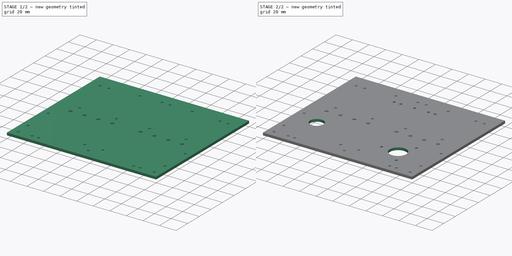
[diagram: build sequence overview — one tinted view per stage of 2, left to right]
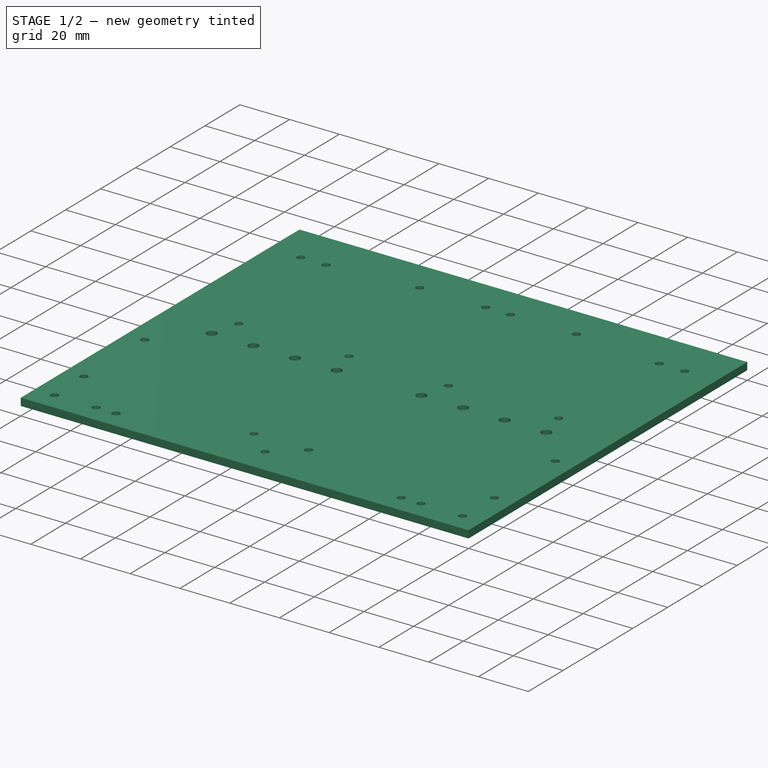
[diagram: stage 1 of 2 — iso view after this stage's code; geometry added in this stage tinted green]
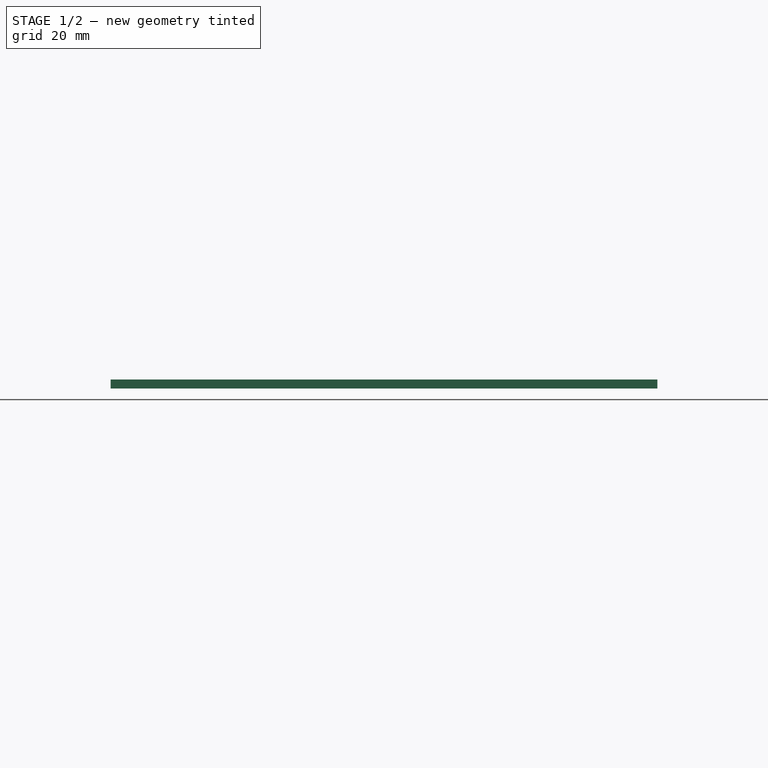
[diagram: stage 1 of 2 — front view after this stage's code; geometry added in this stage tinted green]
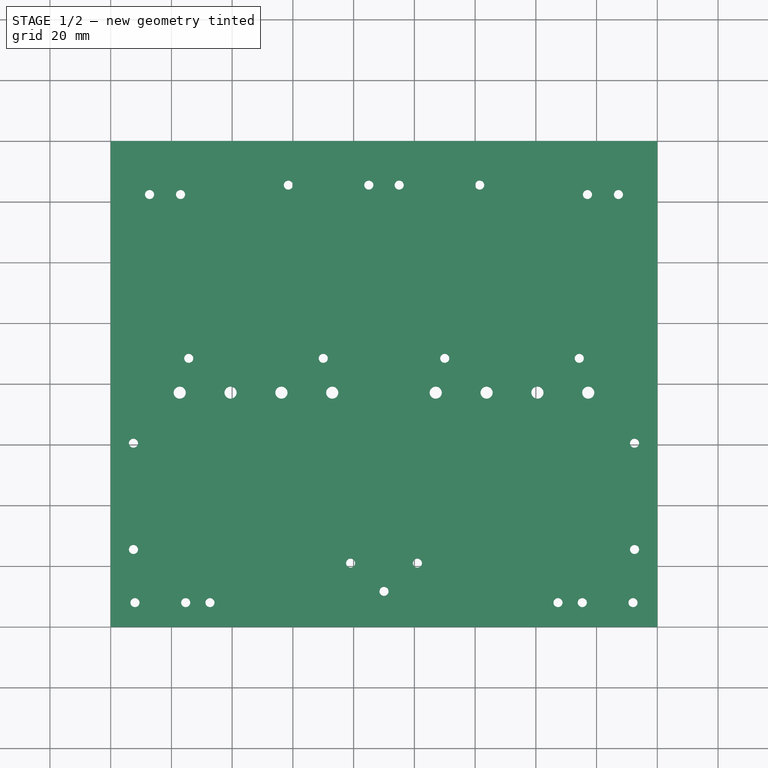
[diagram: stage 1 of 2 — top view after this stage's code; geometry added in this stage tinted green]
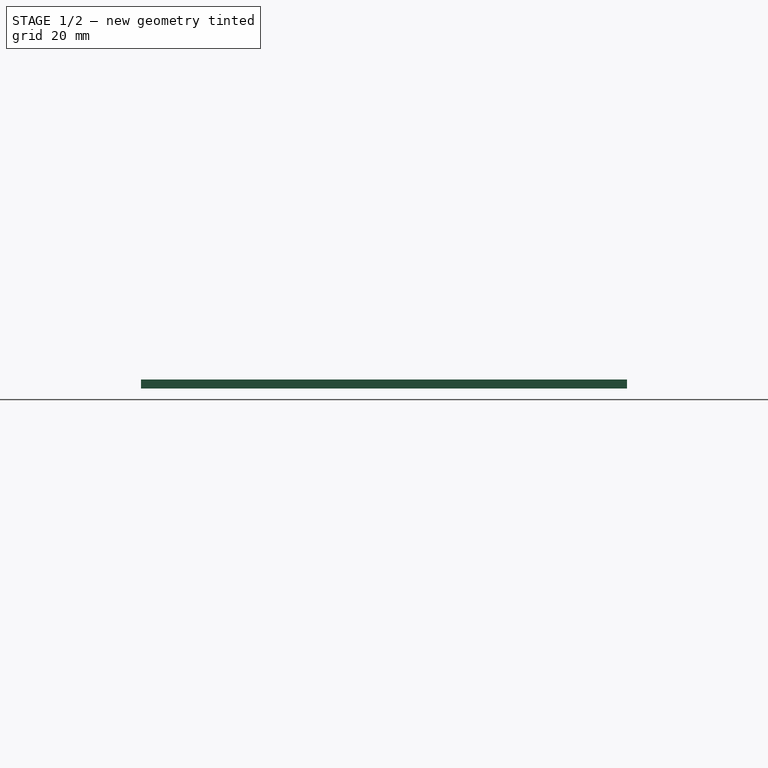
[diagram: stage 1 of 2 — right view after this stage's code; geometry added in this stage tinted green]
FCSTD DOCUMENT  (FreeCAD 0.16R6707 (Git))
Label: plafond
License: All rights reserved
LicenseURL: http://en.wikipedia.org/wiki/All_rights_reserved
objects: Sketcher::SketchObject×2, PartDesign::Pad×1, PartDesign::Mirrored×1, PartDesign::Pocket×1, Drawing::FeatureViewPart×1, Drawing::FeaturePage×1
note: 7 computed .brp shape members not serialized (recipe doc carries the construction recipe); baked Part::Feature solids carry a one-line shape summary decoded from their .brp

FEATURE [Sketcher::SketchObject] Sketch
  sketch-geometry (41):
    g0: LineSegment StartX=0 StartY=13.7 StartZ=0 EndX=0 EndY=160 EndZ=0
    g1: LineSegment StartX=0 StartY=160 StartZ=0 EndX=90 EndY=160 EndZ=0
    g2: LineSegment StartX=90 StartY=160 StartZ=0 EndX=90 EndY=17.4 EndZ=0
    g3: LineSegment [constr] StartX=90 StartY=17.4 StartZ=0 EndX=84.3 EndY=17.4 EndZ=0
    g4: LineSegment [constr] StartX=84.3 StartY=17.4 StartZ=0 EndX=84.3 EndY=6 EndZ=0
    g5: LineSegment [constr] StartX=84.3 StartY=6 StartZ=0 EndX=90 EndY=6 EndZ=0
    g6: LineSegment StartX=90 StartY=6 StartZ=0 EndX=90 EndY=0 EndZ=0
    g7: LineSegment StartX=90 StartY=0 StartZ=0 EndX=13.7 EndY=0 EndZ=0
    g8: LineSegment [constr] StartX=13.7 StartY=0 StartZ=0 EndX=13.7 EndY=13.7 EndZ=0
    g9: LineSegment [constr] StartX=13.7 StartY=13.7 StartZ=0 EndX=0 EndY=13.7 EndZ=0
    g10: LineSegment [constr] StartX=20 StartY=94.15 StartZ=0 EndX=31.4 EndY=94.15 EndZ=0
    g11: LineSegment [constr] StartX=31.4 StartY=94.15 StartZ=0 EndX=31.4 EndY=82.75 EndZ=0
    g12: LineSegment [constr] StartX=31.4 StartY=82.75 StartZ=0 EndX=20 EndY=82.75 EndZ=0
    g13: LineSegment [constr] StartX=20 StartY=82.75 StartZ=0 EndX=20 EndY=94.15 EndZ=0
    g14: LineSegment [constr] StartX=75.7 StartY=94.15 StartZ=0 EndX=64.3 EndY=94.15 EndZ=0
    g15: LineSegment [constr] StartX=64.3 StartY=94.15 StartZ=0 EndX=64.3 EndY=82.75 EndZ=0
    g16: LineSegment [constr] StartX=64.3 StartY=82.75 StartZ=0 EndX=75.7 EndY=82.75 EndZ=0
    g17: LineSegment [constr] StartX=75.7 StartY=82.75 StartZ=0 EndX=75.7 EndY=94.15 EndZ=0
    g18: Circle CenterX=24.7 CenterY=8 CenterZ=0 NormalX=0 NormalY=0 NormalZ=1 Radius=1.5
    g19: Circle CenterX=32.7 CenterY=8 CenterZ=0 NormalX=0 NormalY=0 NormalZ=1 Radius=1.5
    g20: Circle CenterX=79 CenterY=21 CenterZ=0 NormalX=0 NormalY=0 NormalZ=1 Radius=1.5
    g21: Circle CenterX=22.74 CenterY=77.15 CenterZ=0 NormalX=0 NormalY=0 NormalZ=1 Radius=2
    g22: Circle CenterX=39.48 CenterY=77.15 CenterZ=0 NormalX=0 NormalY=0 NormalZ=1 Radius=2
    g23: Circle CenterX=56.22 CenterY=77.15 CenterZ=0 NormalX=0 NormalY=0 NormalZ=1 Radius=2
    g24: Circle CenterX=72.96 CenterY=77.15 CenterZ=0 NormalX=0 NormalY=0 NormalZ=1 Radius=2
    g25: LineSegment StartX=0 StartY=13.7 StartZ=0 EndX=0 EndY=0 EndZ=0
    g26: LineSegment StartX=0 StartY=0 StartZ=0 EndX=13.7 EndY=0 EndZ=0
    g27: Circle CenterX=25.7 CenterY=88.45 CenterZ=0 NormalX=0 NormalY=0 NormalZ=1 Radius=1.5
    g28: Circle CenterX=70 CenterY=88.45 CenterZ=0 NormalX=0 NormalY=0 NormalZ=1 Radius=1.5
    g29: Circle CenterX=8 CenterY=8 CenterZ=0 NormalX=0 NormalY=0 NormalZ=1 Radius=1.5
    g30: LineSegment StartX=90 StartY=6 StartZ=0 EndX=90 EndY=10.2 EndZ=0
    g31: LineSegment StartX=90 StartY=17.4 StartZ=0 EndX=90 EndY=13.2 EndZ=0
    g32: ArcOfCircle CenterX=90 CenterY=11.7 CenterZ=0 NormalX=0 NormalY=0 NormalZ=1 Radius=1.5 StartAngle=1.5708 EndAngle=4.71239
    g33: GeomPoint [constr] X=7.5 Y=60.5 Z=0
    g34: Circle CenterX=7.5 CenterY=60.5 CenterZ=0 NormalX=0 NormalY=0 NormalZ=1 Radius=1.5
    g35: Circle CenterX=7.5 CenterY=25.5 CenterZ=0 NormalX=0 NormalY=0 NormalZ=1 Radius=1.5
    g36: Circle CenterX=85 CenterY=145.5 CenterZ=0 NormalX=0 NormalY=0 NormalZ=1 Radius=1.5
    g37: Circle CenterX=58.5 CenterY=145.5 CenterZ=0 NormalX=0 NormalY=0 NormalZ=1 Radius=1.5
    g38: Circle CenterX=12.8 CenterY=142.4 CenterZ=0 NormalX=0 NormalY=0 NormalZ=1 Radius=1.5
    g39: Circle CenterX=23 CenterY=142.4 CenterZ=0 NormalX=0 NormalY=0 NormalZ=1 Radius=1.5
    g40: GeomPoint [constr] X=8 Y=151 Z=0
  constraints (119):
    c: PointOnObject(g0,g-2)
    c: Vertical(g0)
    c: Coincident(g0,g1)
    c: Horizontal(g1)
    c: Coincident(g1,g2)
    c: Vertical(g2)
    c: Coincident(g2,g3)
    c: Horizontal(g3)
    c: Coincident(g3,g4)
    c: Vertical(g4)
    c: Coincident(g4,g5)
    c: Horizontal(g5)
    c: Coincident(g5,g6)
    c: PointOnObject(g6,g-1)
    c: Vertical(g6)
    c: Coincident(g6,g7)
    c: PointOnObject(g7,g-1)
    c: Coincident(g7,g8)
    c: Vertical(g8)
    c: Coincident(g8,g9)
    c: Coincident(g9,g0)
    c: Horizontal(g9)
    c: Distance(g9) = 13.7
    c: Distance(g8) = 13.7
    c: Distance(g1) = 90
    c: Distance(g3) = 5.7
    c: Distance(g4) = 11.4
    c: DistanceX(g2,g5) = 0
    c: Distance(g6) = 6
    c: DistanceY(g0) = 160
    c: Coincident(g10,g11)
    c: Coincident(g11,g12)
    c: Coincident(g12,g13)
    c: Coincident(g13,g10)
    c: Horizontal(g10)
    c: Horizontal(g12)
    c: Vertical(g11)
    c: Vertical(g13)
    c: Coincident(g14,g15)
    c: Coincident(g15,g16)
    c: Coincident(g16,g17)
    c: Coincident(g17,g14)
    c: Horizontal(g14)
    c: Horizontal(g16)
    c: Vertical(g15)
    c: Vertical(g17)
    c: DistanceY(g3,g15) = 65.35
    c: DistanceY(g16,g11) = 0
    c: DistanceX(g10) = 20
    c: Distance(g10) = 11.4
    c: Distance(g14) = 11.4
    c: Distance(g13) = 11.4
    c: Distance(g15) = 11.4
    c: Radius(g18) = 1.5
    c: Equal(g18,g19)
    c: Equal(g18,g20)
    c: Radius(g21) = 2
    c: Equal(g21,g22)
    c: Equal(g21,g23)
    c: Equal(g21,g24)
    c: DistanceX(g21) = 22.74
    c: DistanceX(g21,g22) = 16.74
    c: DistanceX(g22,g23) = 16.74
    c: DistanceX(g23,g24) = 16.74
    c: DistanceY(g22,g21) = 0
    c: DistanceY(g23,g22) = 0
    c: DistanceY(g24,g23) = 0
    c: DistanceY(g21,g10) = 17
    c: DistanceY(g18,g8) = 5.7
    c: DistanceX(g8,g18) = 11
    c: DistanceY(g4,g20) = 15
    c: DistanceX(g20,g3) = 5.3
    c: DistanceY(g18,g19) = 0
    c: DistanceX(g18,g19) = 8
    c: Coincident(g25,g0)
    c: Coincident(g25,g-1)
    c: DistanceX(g10,g14) = 32.9
    c: Coincident(g26,g-1)
    c: Coincident(g26,g7)
    c: Radius(g27) = 1.5
    c: Equal(g27,g28)
    c: DistanceY(g27,g28) = 0
    c: DistanceY(g27,g10) = 5.7
    c: DistanceX(g12,g27) = 5.7
    c: DistanceX(g15,g28) = 5.7
    c: Radius(g29) = 1.5
    c: DistanceY(g29,g8) = 5.7
    c: DistanceX(g29,g8) = 5.7
    c: Coincident(g30,g5)
    c: Vertical(g30)
    c: Coincident(g31,g2)
    c: Vertical(g31)
    c: Coincident(g32,g31)
    c: Coincident(g32,g30)
    c: DistanceX(g5,g32) = 0
    c: DistanceY(g5,g32) = 5.7
    c: Distance(g30) = 4.2
    c: DistanceY(g29,g33) = 52.5
    c: DistanceX(g33) = 7.5
    c: DistanceX(g35,g33) = 0
    c: DistanceX(g34,g33) = 0
    c: DistanceY(g34,g33) = 0
    c: Radius(g35) = 1.5
    c: Equal(g35,g34)
    c: DistanceY(g34,g35) = -35
    c: DistanceX(g37,g1) = 31.5
    c: DistanceX(g36,g1) = 5
    c: Radius(g37) = 1.5
    c: Equal(g37,g36)
    c: DistanceY(g37,g36) = 0
    c: DistanceY(g36,g1) = 14.5
    c: DistanceY(g38,g39) = 0
    c: DistanceX(g38,g39) = 10.2
    c: Radius(g38) = 1.5
    c: Equal(g38,g39)
    c: DistanceX(g40,g38) = 4.8
    c: DistanceY(g38,g40) = 8.6
    c: DistanceY(g40,g0) = 9
    c: DistanceX(g0,g40) = 8
FEATURE [PartDesign::Pad] Pad
  Length = 3
  Length2 = 100
  Sketch = -> Sketch
  Type = 0
FEATURE [PartDesign::Mirrored] Mirrored
  MirrorPlane = -> Pad [Face4]
  Originals = -> [Pad]
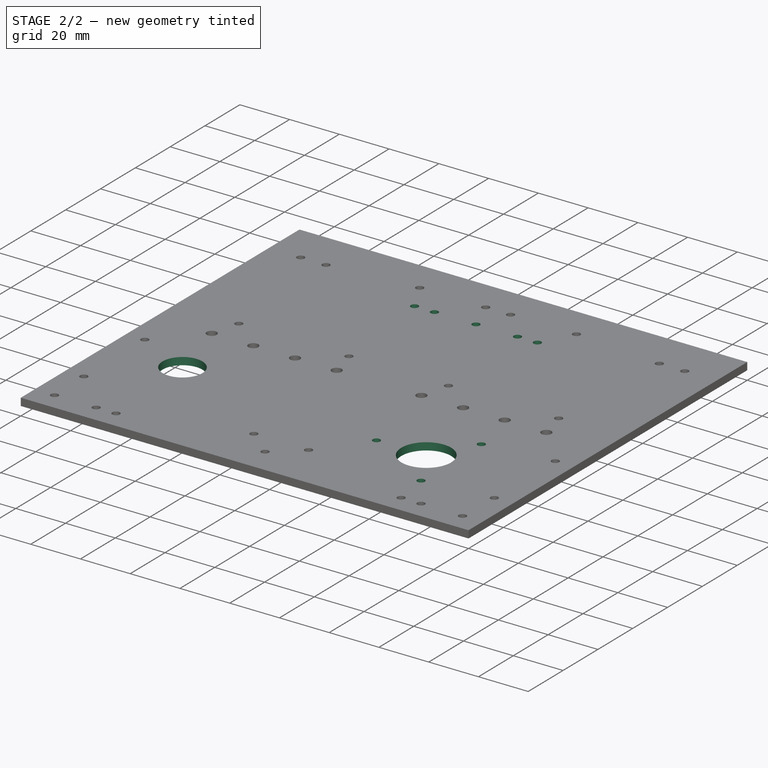
[diagram: stage 2 of 2 — iso view after this stage's code; geometry added in this stage tinted green]
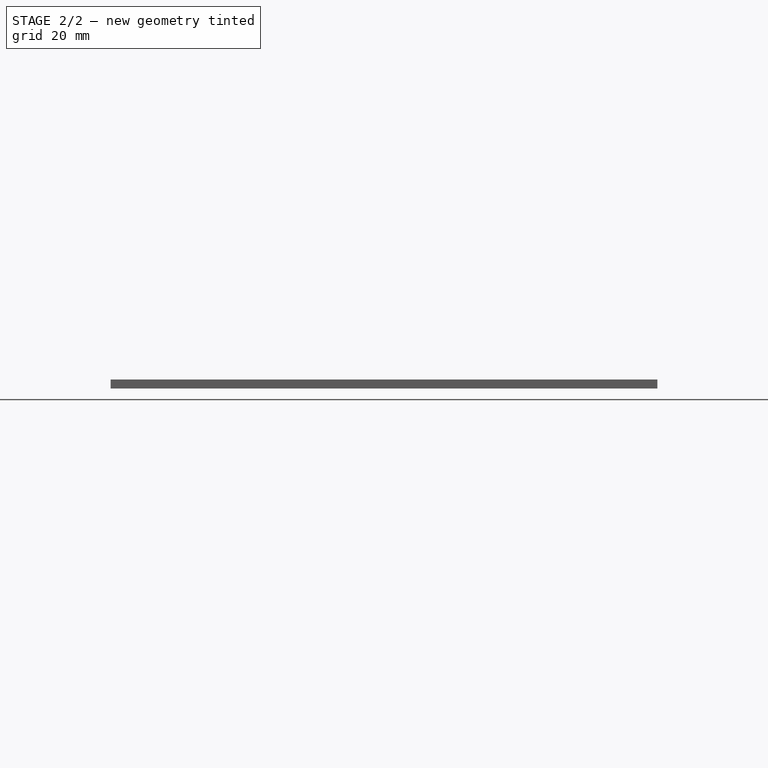
[diagram: stage 2 of 2 — front view after this stage's code; geometry added in this stage tinted green]
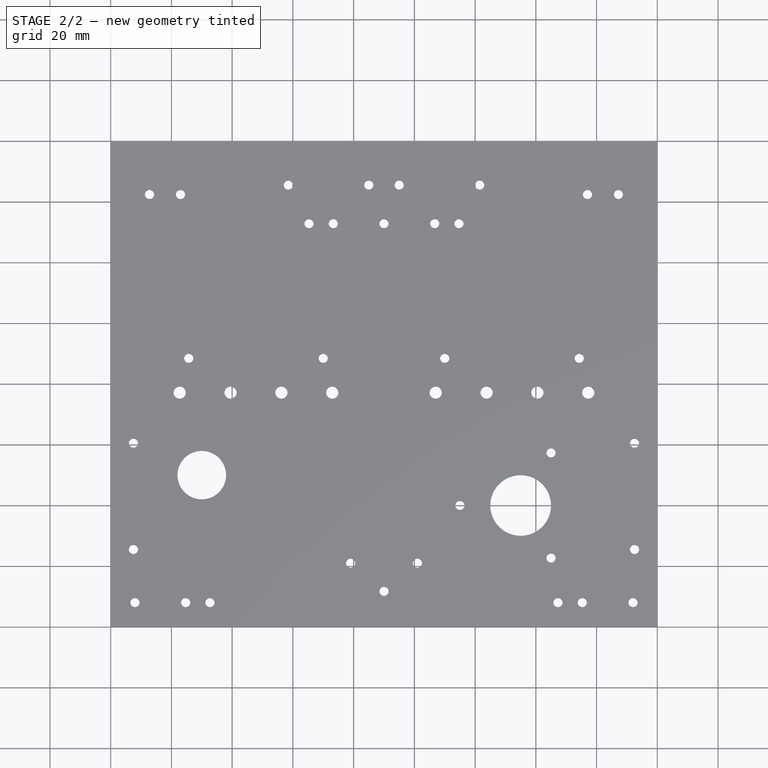
[diagram: stage 2 of 2 — top view after this stage's code; geometry added in this stage tinted green]
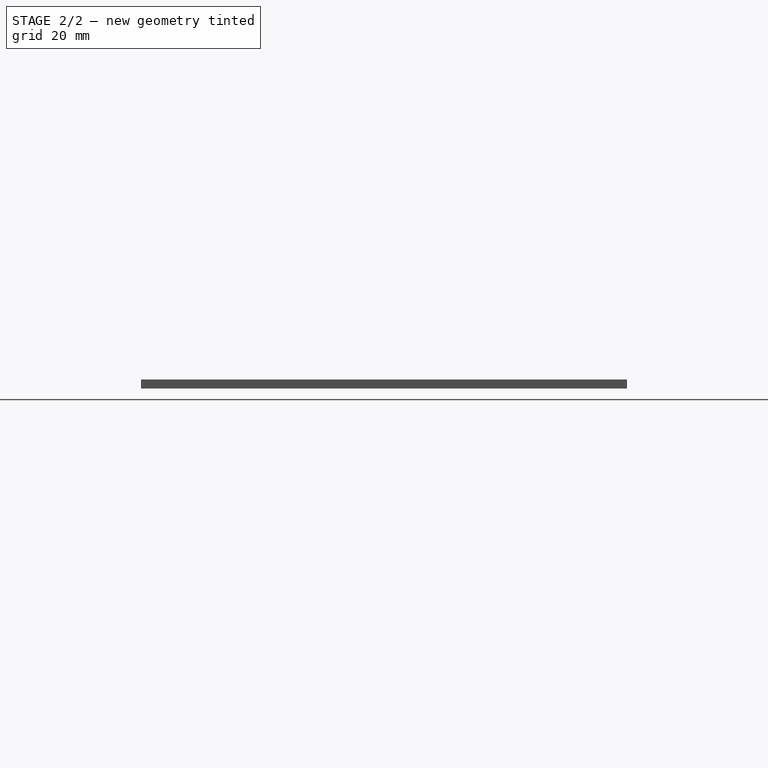
[diagram: stage 2 of 2 — right view after this stage's code; geometry added in this stage tinted green]
FEATURE [Sketcher::SketchObject] Sketch001
  Placement = pos=(0,0,3) rot=(0,0,1;0rad)
  Support = -> Mirrored [Face5]
  sketch-geometry (14):
    g0: Circle CenterX=30 CenterY=50 CenterZ=0 NormalX=0 NormalY=0 NormalZ=1 Radius=8
    g1: GeomPoint [constr] X=90 Y=160 Z=0
    g2: Circle CenterX=90 CenterY=132.8 CenterZ=0 NormalX=0 NormalY=0 NormalZ=1 Radius=1.5
    g3: Circle CenterX=106.7 CenterY=132.8 CenterZ=0 NormalX=0 NormalY=0 NormalZ=1 Radius=1.5
    g4: Circle CenterX=114.7 CenterY=132.8 CenterZ=0 NormalX=0 NormalY=0 NormalZ=1 Radius=1.5
    g5: Circle CenterX=73.3 CenterY=132.8 CenterZ=0 NormalX=0 NormalY=0 NormalZ=1 Radius=1.5
    g6: Circle CenterX=65.3 CenterY=132.8 CenterZ=0 NormalX=0 NormalY=0 NormalZ=1 Radius=1.5
    g7: Circle CenterX=135 CenterY=40 CenterZ=0 NormalX=0 NormalY=0 NormalZ=1 Radius=10
    g8: LineSegment [constr] StartX=135 StartY=40 StartZ=0 EndX=145 EndY=57.3205 EndZ=0
    g9: LineSegment [constr] StartX=135 StartY=40 StartZ=0 EndX=115 EndY=40 EndZ=0
    g10: LineSegment [constr] StartX=135 StartY=40 StartZ=0 EndX=145 EndY=22.6795 EndZ=0
    g11: Circle CenterX=115 CenterY=40 CenterZ=0 NormalX=0 NormalY=0 NormalZ=1 Radius=1.5
    g12: Circle CenterX=145 CenterY=57.3205 CenterZ=0 NormalX=0 NormalY=0 NormalZ=1 Radius=1.5
    g13: Circle CenterX=145 CenterY=22.6795 CenterZ=0 NormalX=0 NormalY=0 NormalZ=1 Radius=1.5
  constraints (38):
    c: Radius(g0) = 8
    c: DistanceX(g0) = 30
    c: DistanceY(g0) = 50
    c: DistanceY(g1) = 160
    c: DistanceX(g1) = 90
    c: DistanceY(g2,g1) = 27.2
    c: DistanceY(g2,g5) = 0
    c: DistanceY(g5,g6) = 0
    c: DistanceY(g3,g2) = 0
    c: DistanceY(g4,g3) = 0
    c: DistanceX(g6,g5) = 8
    c: DistanceX(g5,g2) = 16.7
    c: DistanceX(g2,g1) = 0
    c: DistanceX(g2,g3) = 16.7
    c: DistanceX(g3,g4) = 8
    c: Radius(g6) = 1.5
    c: Equal(g6,g5)
    c: Equal(g6,g2)
    c: Equal(g6,g3)
    c: Equal(g6,g4)
    c: Radius(g7) = 10
    c: DistanceY(g7) = 40
    c: DistanceX(g1,g7) = 45
    c: Coincident(g8,g7)
    c: Coincident(g9,g7)
    c: Coincident(g10,g7)
    c: Angle(g8) = 1.0472
    c: Angle(g8,g9) = 2.0944
    c: Angle(g9,g10) = 2.0944
    c: Distance(g10) = 20
    c: Distance(g9) = 20
    c: Distance(g8) = 20
    c: Coincident(g11,g9)
    c: Coincident(g12,g8)
    c: Coincident(g13,g10)
    c: Radius(g13) = 1.5
    c: Equal(g13,g11)
    c: Equal(g13,g12)
FEATURE [PartDesign::Pocket] Pocket
  Length = 5
  Sketch = -> Sketch001
  Type = 1
FEATURE [Drawing::FeatureViewPart] Ortho  label="Ortho_0_0"
  Direction = (0,0,1)
  HiddenWidth = 0.15
  LineWidth = 0.35
  Rotation = 0
  ShowHiddenLines = false
  ShowSmoothLines = false
  Source = -> Pocket
  Tolerance = 0.05
  ViewResult = <blob: 2755 chars omitted>
  Visible = true
  X = 120
  Y = 198.5
FEATURE [Drawing::FeaturePage] Page
  EditableTexts = AUTHOR NAME | CREATION DATE | SUPERVISOR NAME | CHECK DATE | SCALE | WEIGHT | NUMBER | SHEET | TITLE | SUBTITLE
  Group = -> [Ortho]
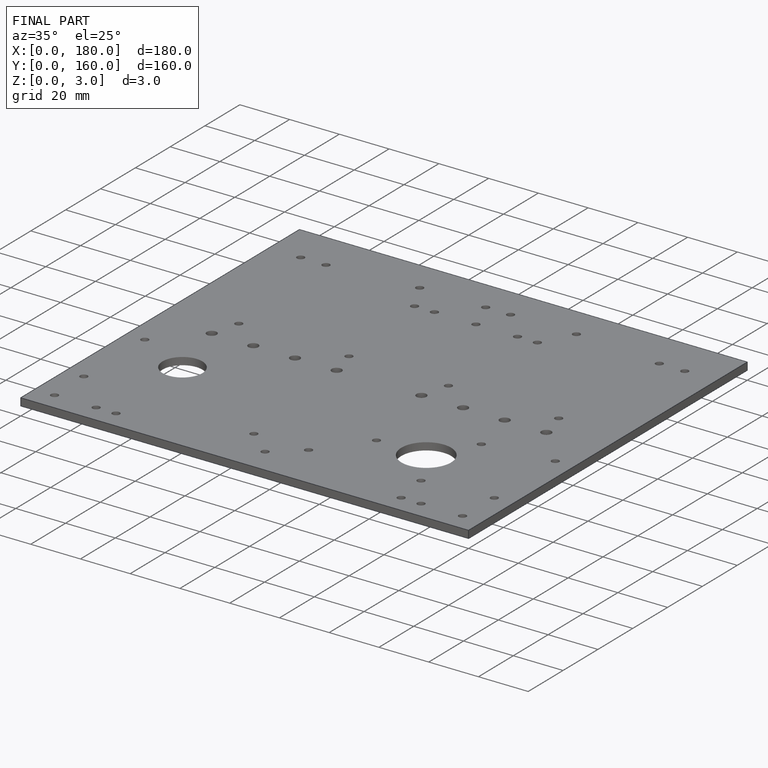
[diagram: finished part — iso view with bounding-box wireframe]
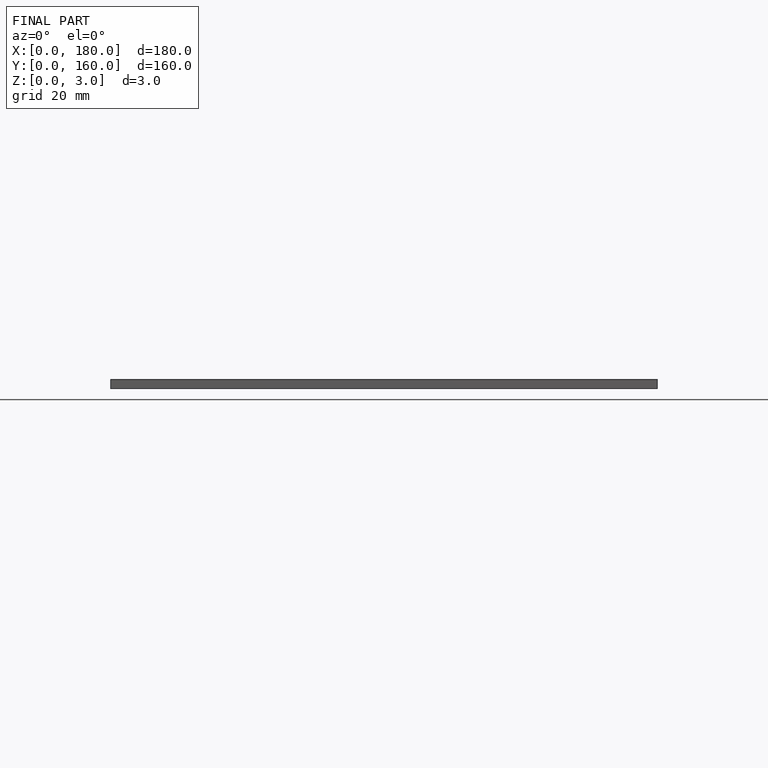
[diagram: finished part — front view with bounding-box wireframe]
